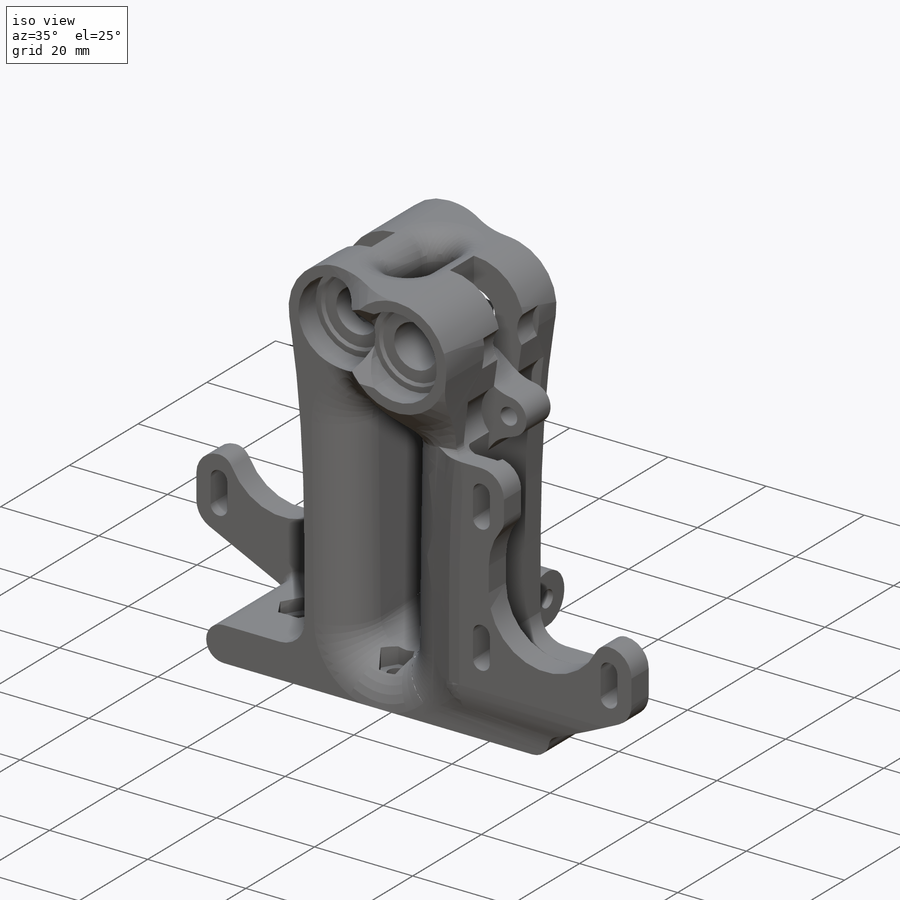
[diagram: iso view]
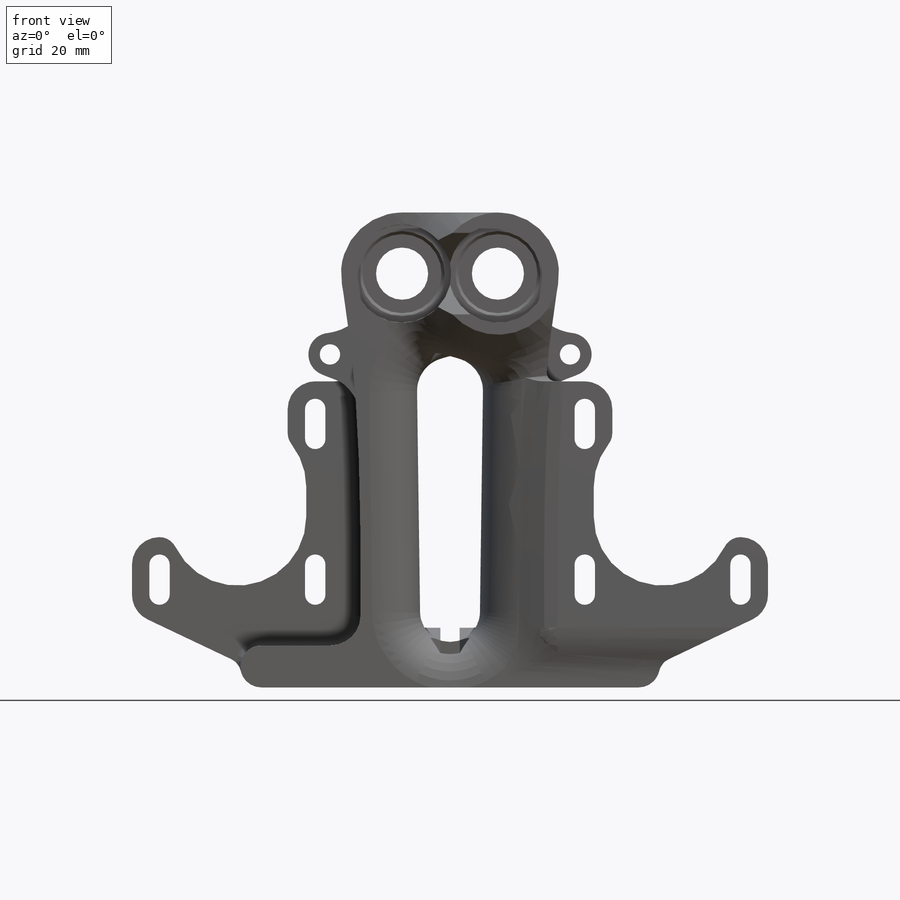
[diagram: front view]
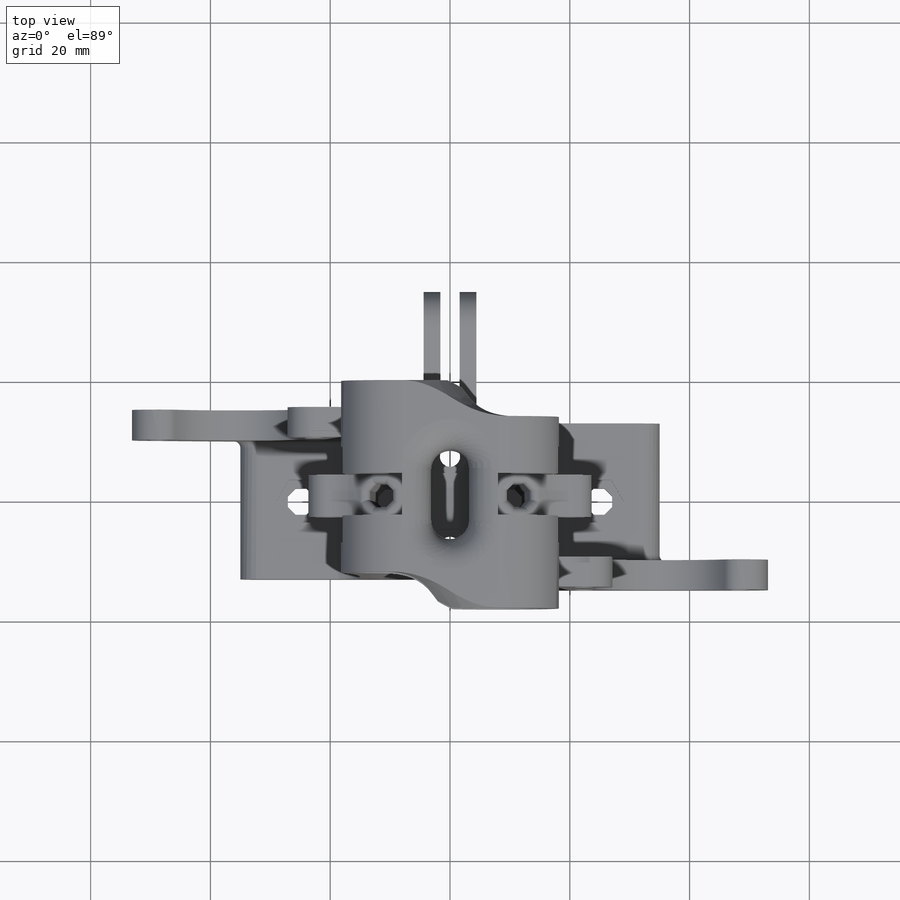
[diagram: top view]
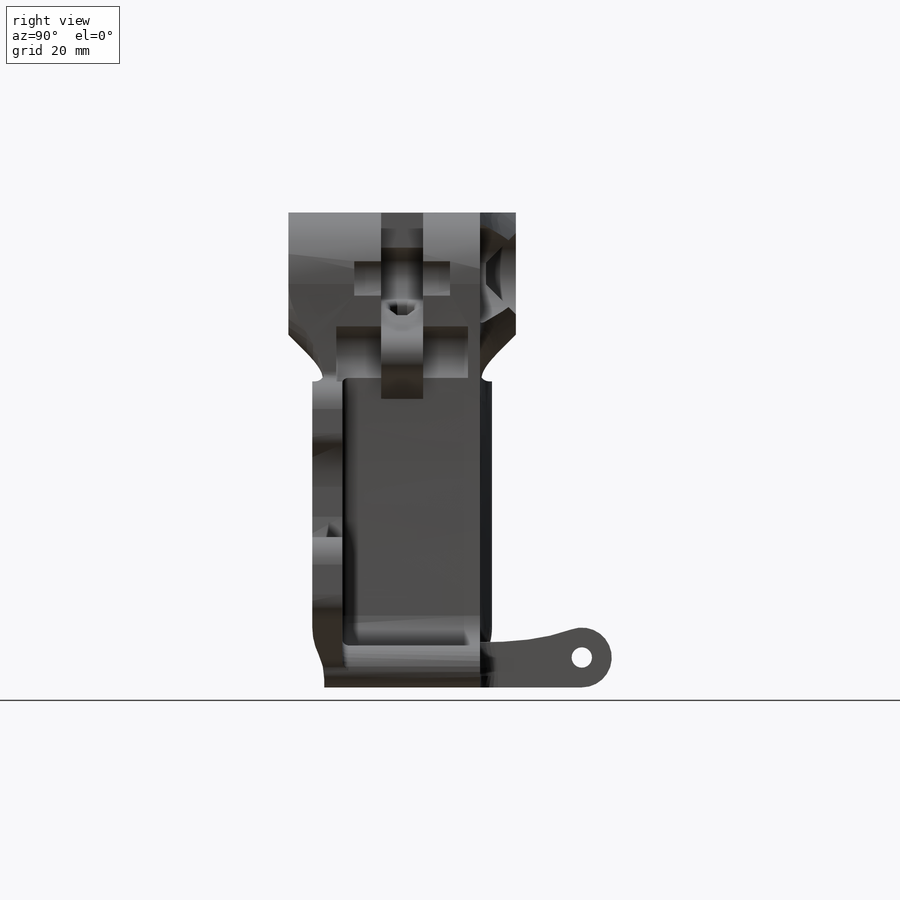
[diagram: right view]
SOLIDWORKS PART (.sldprt)
format: sldprt  version: not decoded by parser v0  size: 2,003,968 bytes
history: native  units: mm
features: sketch x31, fillet x17, cut_extrude x15, extrude x9, pattern_circular x3, sweep x2, material x1, chamfer x1, plane x1 (+12 scaffold rows collapsed)
feature tree (92):
  scaffold x12  (default folders/planes/origin — collapsed)
  material  "Material <not specified>"
  sketch  "Bottom Guide"  dims[c1.D1=17.0mm c1.D3=4.4mm c1.D4=7.15mm c1.D6=3.95mm c1.D9=~4.530161mm c1.D11=3.4mm c1.D12=5.65mm c1.D10=2.95mm c1.D14=3.95mm c1.D2=20.0mm c1.D5=49.75mm c1.D7=~21.662006mm c1.D8=~71.932873mm c2.D7=26.0mm c2.D8=70.0mm c2.D9=26.0mm c2.D10=~30.774721mm c3.D9=30.0mm c3.D10=3.0mm c4.D9=7.5mm c4.D12=5.5mm c4.D13=29.95mm]
  sketch  "Vertical Guide"  dims[c1.D5=16.0mm c1.D6=8.0mm c1.D8=16.0mm c1.D10=7.2mm c1.D11=7.2mm c1.D12=7.2mm c1.D1=~13.980781mm c1.D2=~14.705174mm c2.D1=35.0mm c2.D2=35.0mm c2.D3=8.0mm c2.D4=110.0mm c2.D7=9.375mm c2.D9=~13.131446mm c3.D9=~93.699403deg c4.D9=~13.131446mm c5.D9=90.0deg c6.D9=12.6mm c6.D11=8.0mm c6.D12=~84.15789deg]
  sketch  "Symmetry Axis"
  sketch  "Sketch6"  dims[D1=20.4mm D2=~37.146069mm D3=~50.139072mm]
  extrude  "Main Body"  Depth=13mm
  sketch  "Sketch7"  dims[D1=8.0mm]
  cut_extrude  "Hobbed Bolt Bore"  [1 undecoded]
  sketch  "Sketch8"  dims[D1=5.5567mm]
  cut_extrude  "Feed Notch"  Depth=3.5mm
  sketch  "Sketch11"  dims[c1.D1=3.4mm c1.D2=3.6mm c2.D1=~8.217871mm c2.D2=~8.217871mm c2.D3=~3.291088mm c3.D2=~7.676232mm c4.D2=135.0deg]
  extrude  "Idler Ear"  Depth=3.5mm
  sketch  "Sketch13"  dims[D1=9.0mm]
  cut_extrude  "Idler Pin Relief"  Depth=8mm
  sketch  "Sketch14"  dims[D1=16.4mm]
  cut_extrude  "Front Bearing Pocket"  Depth=5mm
  pattern_circular  "CirPattern4"  Count=2 Angle=180deg
  sketch  "Sketch15"  dims[D1=20.4mm]
  extrude  "Back Bearing Boss"  Depth=6mm
  sketch  "Sketch16"  dims[D1=16.4mm]
  cut_extrude  "Back Bearing Pocket"  Depth=5mm
  pattern_circular  "CirPattern5"  Count=2 Angle=180deg
  chamfer  "Back Bearing Chamfer"  Distance=6mm Angle=45deg
  sketch  "Sketch17"  dims[c1.D1=5.0mm c2.D1=135.0deg]
  cut_extrude  "Bearing Build Releif"  Depth=5mm
  extrude  "Base Plate Upper"  Depth=2.4mm
  extrude  "Base Plate Lower"  [1 undecoded]
  sketch  "Bottom Guide<3>"  dims[D1=4.6mm]
  sketch  "Filament Channel Profile"
  sketch  "Filament Channel Path"
  sweep  "Filament Channel"
  sketch  "Filament Channel Path 2"
  sketch  "Filament Channel Profile 2"
  sweep  "Filament Channel 2"
  sketch  "Sketch18"  dims[c1.D2=1.7mm c1.D10=~10.664338mm c1.D11=12.0mm c1.D5=4.6mm c1.D9=11.5mm c1.D1=5.0mm c1.D3=11.0mm c1.D4=22.5mm c1.D7=26.0mm c1.D8=5.0mm c2.D9=~5.449674mm c2.D10=~25.987644mm c2.D7=26.0mm c2.D8=5.0mm c2.D11=~8.995139mm c2.D12=26.0mm c3.D9=3.0mm c3.D10=3.0mm c3.D6=2.0 c3.D11=2.0]
  extrude  "Motor Mounting Wing"  Depth=2mm
  fillet  "Fillet13"  Radius=3mm
  sketch  "Sketch24"  dims[D1=2.75mm D2=2.75mm]
  pattern_circular  "CirPattern7"  Count=2 Angle=180deg
  fillet  "Motor Mount Fillet 1"  Radius=10mm
  fillet  "Motor Mount Fillet 3"  Radius=10mm
  fillet  "Motor Mount Fillet 4"  Radius=10mm
  fillet  "Wing Top Detail Fillet"  Radius=1.5mm
  fillet  "Column Side Fillets"  Radius=5mm
  fillet  "Base End Fillet"  Radius=3.5mm
  sketch  "Sketch20"  dims[D1=2.0mm]
  cut_extrude  "Hinge Relief"  Depth=7.5mm
  cut_extrude  "Hinge Relief 2"  [1 undecoded]
  sketch  "Sketch20<2>"  dims[D1=7.5mm D19=3.5mm]
  fillet  "Fillet8"  Radius=10mm
  sketch  "Sketch21"  dims[D1=11.0mm D2=10.0mm D3=8.0mm D4=37.0mm]
  cut_extrude  "Center Opening"  [1 undecoded]
  fillet  "Center Opening Fillet"  Radius=8mm
  sketch  "Sketch22"  dims[c1.D1=6.0mm c1.D2=8.0mm c1.D3=0.5mm c2.D1=3.15mm c2.D4=3.65mm]
  cut_extrude  "Top Vent"  Depth=48mm
  fillet  "Top Ven Top Fillet"  Radius=5mm
  fillet  "TopVen Bottom Fillet"  Radius=3mm
  fillet  "Wing Bottom Fillet"  Radius=3mm
  fillet  "Filament Entry Fillet"  Radius=10mm
  fillet  "Filament Funnel"  Radius=1mm
  fillet  "Motor Opening Fillets"  Radius=1mm
  cut_extrude  "Front Bearing Relief"  Depth=0.5mm
  cut_extrude  "Front Bearing Relief 2"  [1 undecoded]
  sketch  "Sketch24<3>"  dims[D1=0.5mm D3=45.0deg]
  cut_extrude  "Back Bearing Relief"  [1 undecoded]
  sketch  "Sketch24<4>"  dims[D1=0.5mm D3=45.0deg]
  cut_extrude  "Back Bearing Relief 2"  [1 undecoded]
  sketch  "Sketch24<5>"  dims[D1=0.5mm D3=45.0deg]
  sketch  "Sketch25"
  extrude  "Support Hot End .2mm"  Depth=0.2mm
  sketch  "Sketch26"  dims[c1.D1=~5.797224mm c1.D3=3.4mm c1.D4=10.0mm c2.D1=17.0mm c2.D2=5.5mm c2.D5=~14.453845mm c3.D5=150.0deg]
  extrude  "Boss-Extrude1"  Depth=2.8mm
  extrude  "Boss-Extrude2"  [1 undecoded]
  sketch  "Sketch26<3>"  dims[D1=2.8mm D19=1.6mm]
  fillet  "Fillet11"  Radius=3mm
  fillet  "Fillet12"  Radius=1.6mm
  cut_extrude  "Center Nut Traps"  [1 undecoded]
  sketch  "Bottom Guide<4>"
  plane  "Plane1"
  sketch  "Sketch27"  dims[D1=0.5mm]
decode coverage: 60 of 78 modeling features carry decoded parameters
note: ~ marks probable driven/reference dimensions
note: 9 parameter values undecoded
summary: no parameter record found for 9 features
note: suppression state not decoded; provenance and decode notes live in map.json
